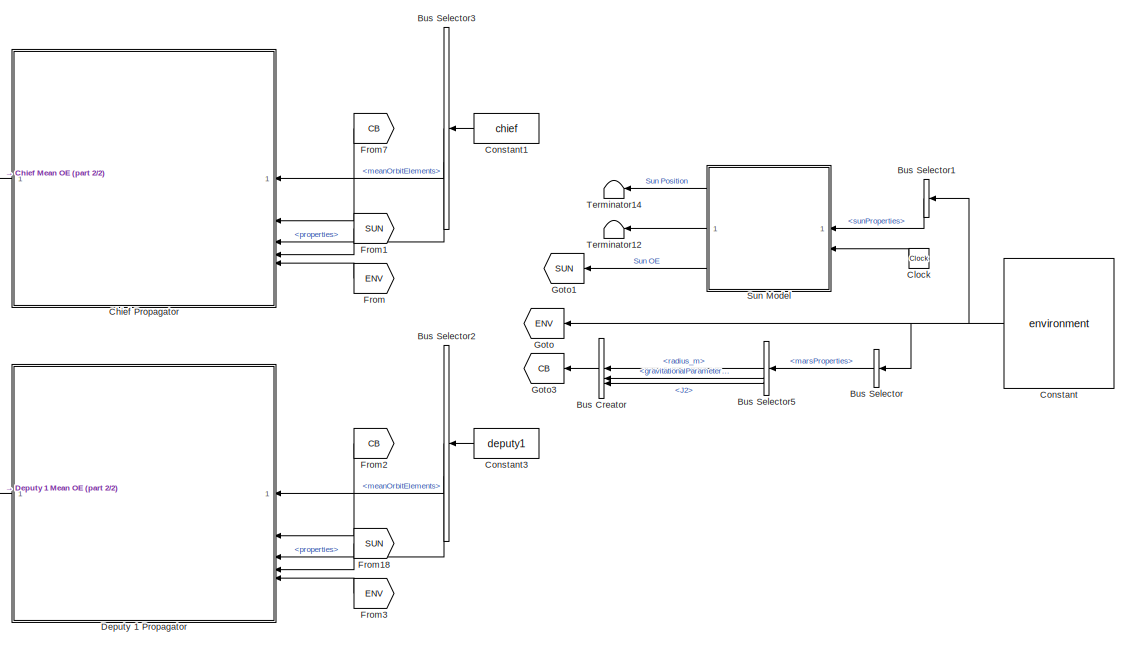
[diagram: root canvas - part 1/2, middle right region]
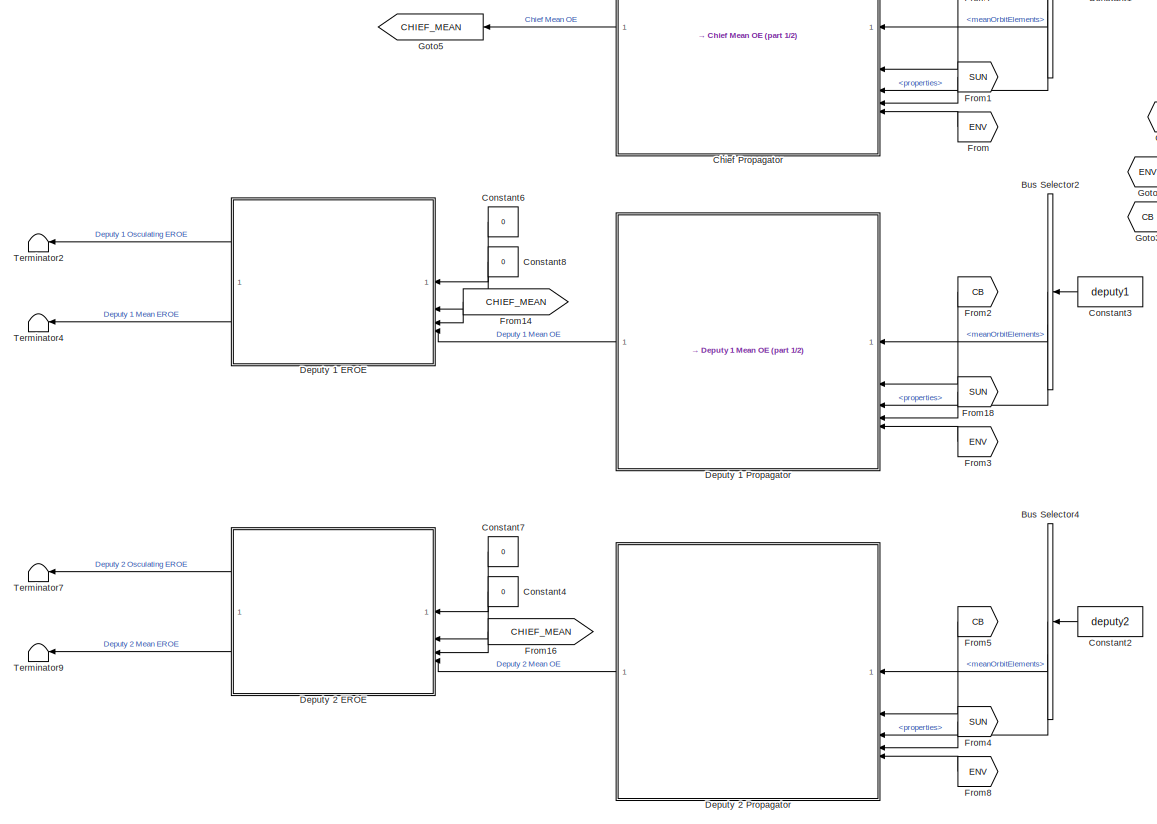
[diagram: root canvas - part 2/2, center side, full height]
MODEL slx_c7b266174b3e
KIND model
CONFIG AbsTol = auto
CONFIG EnableMultiTasking = off
CONFIG FixedStep = dt
CONFIG MaxStep = max_step_size
CONFIG MinStep = auto
CONFIG RelTol = relative_tolerance
CONFIG SampleTimeConstraint = Unconstrained
CONFIG SolverName = ode4
CONFIG StartTime = 0.0
CONFIG StopTime = t_duration
BLOCK [BusCreator] Bus Creator
  DisplayOption = bar
  InheritFromInputs = off
  Inputs = 3
  NonVirtualBus = on
  OutDataTypeStr = Bus: planetProperties
BLOCK [BusSelector] Bus Selector
  OutputSignals = marsProperties
BLOCK [BusSelector] Bus Selector1
  OutputSignals = sunProperties
BLOCK [BusSelector] Bus Selector2
  OutputSignals = initialConditions.meanOrbitElements,properties
BLOCK [BusSelector] Bus Selector3
  OutputSignals = initialConditions.meanOrbitElements,properties
BLOCK [BusSelector] Bus Selector4
  OutputSignals = initialConditions.meanOrbitElements,properties
BLOCK [BusSelector] Bus Selector5
  OutputSignals = radius_m,gravitationalParameter_m3_s2,J2
BLOCK [ModelReference] Chief Propagator
  ModelNameDialog = PerturbedMeanOrbitPropagator
  ModelReferenceVersion = 1.207
BLOCK [Clock] Clock
BLOCK [Constant] Constant
  OutDataTypeStr = Bus: environmentBus
  Value = environment
BLOCK [Constant] Constant1
  OutDataTypeStr = Bus: chiefBus
  Value = chief
BLOCK [Constant] Constant2
  OutDataTypeStr = Bus: deputy1Bus
  Value = deputy2
BLOCK [Constant] Constant3
  OutDataTypeStr = Bus: deputy1Bus
  Value = deputy1
BLOCK [Constant] Constant4
  OutDataTypeStr = Bus: osculatingOrbitElements
  Value = 0
BLOCK [Constant] Constant6
  OutDataTypeStr = Bus: osculatingOrbitElements
  Value = 0
BLOCK [Constant] Constant7
  OutDataTypeStr = Bus: osculatingOrbitElements
  Value = 0
BLOCK [Constant] Constant8
  OutDataTypeStr = Bus: osculatingOrbitElements
  Value = 0
BLOCK [ModelReference] Deputy 1 EROE
  ModelNameDialog = singularEROE
  ModelReferenceVersion = 1.18
BLOCK [ModelReference] Deputy 1 Propagator
  ModelNameDialog = PerturbedMeanOrbitPropagator
  ModelReferenceVersion = 1.207
BLOCK [ModelReference] Deputy 2 EROE
  ModelNameDialog = singularEROE
  ModelReferenceVersion = 1.18
BLOCK [ModelReference] Deputy 2 Propagator
  ModelNameDialog = PerturbedMeanOrbitPropagator
  ModelReferenceVersion = 1.207
BLOCK [From] From
  GotoTag = ENV
BLOCK [From] From1
  GotoTag = SUN
BLOCK [From] From14
  GotoTag = CHIEF_MEAN
BLOCK [From] From16
  GotoTag = CHIEF_MEAN
BLOCK [From] From18
  GotoTag = SUN
BLOCK [From] From2
  GotoTag = CB
BLOCK [From] From3
  GotoTag = ENV
BLOCK [From] From4
  GotoTag = SUN
BLOCK [From] From5
  GotoTag = CB
BLOCK [From] From7
  GotoTag = CB
BLOCK [From] From8
  GotoTag = ENV
BLOCK [Goto] Goto
  GotoTag = ENV
BLOCK [Goto] Goto1
  GotoTag = SUN
BLOCK [Goto] Goto3
  GotoTag = CB
BLOCK [Goto] Goto5
  GotoTag = CHIEF_MEAN
BLOCK [ModelReference] Sun Model
  ModelNameDialog = sun
  ModelReferenceVersion = 1.19
BLOCK [Terminator] Terminator12
BLOCK [Terminator] Terminator14
BLOCK [Terminator] Terminator2
BLOCK [Terminator] Terminator4
BLOCK [Terminator] Terminator7
BLOCK [Terminator] Terminator9
LINE Bus Creator:1 -> Goto3:1
LINE Bus Selector1:1 -> Sun Model:1
LINE Bus Selector2:1 -> Deputy 1 Propagator:1
LINE Bus Selector2:2 -> Deputy 1 Propagator:3
LINE Bus Selector3:1 -> Chief Propagator:1
LINE Bus Selector3:2 -> Chief Propagator:3
LINE Bus Selector4:1 -> Deputy 2 Propagator:1
LINE Bus Selector4:2 -> Deputy 2 Propagator:3
LINE Bus Selector5:1 -> Bus Creator:1
LINE Bus Selector5:2 -> Bus Creator:2
LINE Bus Selector5:3 -> Bus Creator:3
LINE Bus Selector:1 -> Bus Selector5:1
LINE Chief Propagator:1 -> Goto5:1
LINE Clock:1 -> Sun Model:2
LINE Constant1:1 -> Bus Selector3:1
LINE Constant2:1 -> Bus Selector4:1
LINE Constant3:1 -> Bus Selector2:1
LINE Constant4:1 -> Deputy 2 EROE:2
LINE Constant6:1 -> Deputy 1 EROE:1
LINE Constant7:1 -> Deputy 2 EROE:1
LINE Constant8:1 -> Deputy 1 EROE:2
NET Constant:1 -> Bus Selector1:1, Bus Selector:1, Goto:1
LINE Deputy 1 EROE:1 -> Terminator2:1
LINE Deputy 1 EROE:2 -> Terminator4:1
LINE Deputy 1 Propagator:1 -> Deputy 1 EROE:4
LINE Deputy 2 EROE:1 -> Terminator7:1
LINE Deputy 2 EROE:2 -> Terminator9:1
LINE Deputy 2 Propagator:1 -> Deputy 2 EROE:4
LINE From14:1 -> Deputy 1 EROE:3
LINE From16:1 -> Deputy 2 EROE:3
LINE From18:1 -> Deputy 1 Propagator:4
LINE From1:1 -> Chief Propagator:4
LINE From2:1 -> Deputy 1 Propagator:2
LINE From3:1 -> Deputy 1 Propagator:5
LINE From4:1 -> Deputy 2 Propagator:4
LINE From5:1 -> Deputy 2 Propagator:2
LINE From7:1 -> Chief Propagator:2
LINE From8:1 -> Deputy 2 Propagator:5
LINE From:1 -> Chief Propagator:5
LINE Sun Model:1 -> Terminator14:1
LINE Sun Model:2 -> Terminator12:1
LINE Sun Model:3 -> Goto1:1
note: NET lines group one-source signal fan-out (src -> all destinations, sorted); 1:1 wires keep LINE
